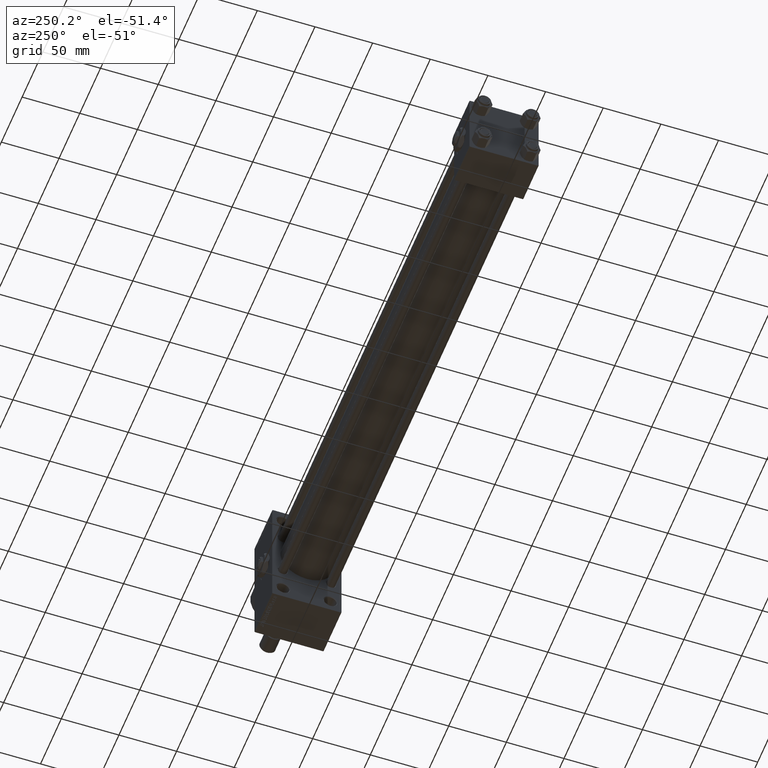
[diagram: clean part render]
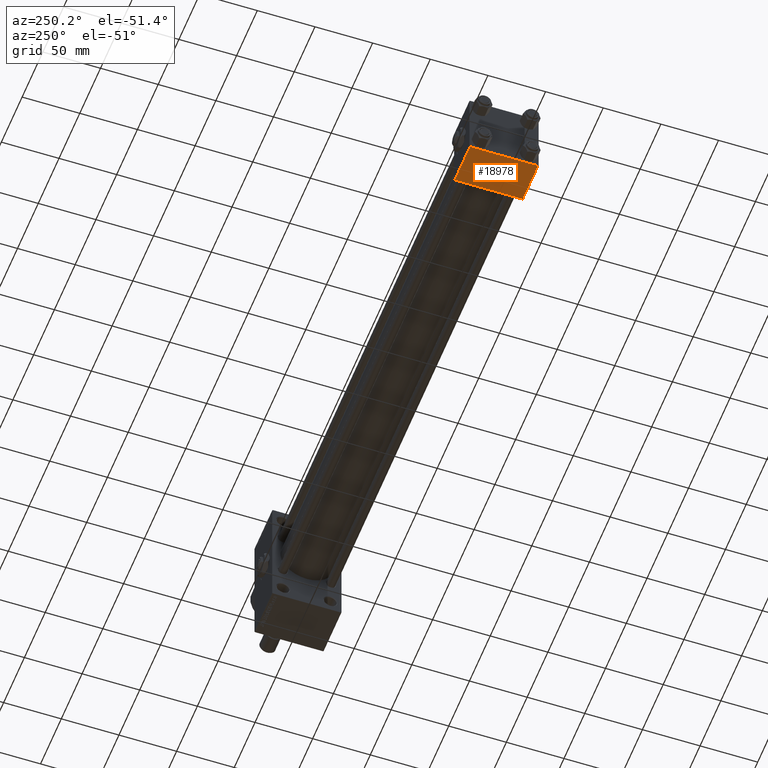
[diagram: same view with one face highlighted and labeled with its STEP entity id]
A machine part, auxiliary view. The second image highlights one B-rep face of the part: STEP entity #18978.
In plain terms, the highlighted planar face has unit normal (0, 0, -1).
Its self-contained STEP definition (entity closure, byte-faithful):
#2007 = EDGE_CURVE ( 'NONE', #23005, #24872, #23461, .T. ) ;
#2552 = CARTESIAN_POINT ( 'NONE',  ( 0.000000000000000000, -29.50000000000000000, -30.00000000000000711 ) ) ;
#7485 = DIRECTION ( 'NONE',  ( 0.000000000000000000, 1.156482317317871725E-16, -1.000000000000000000 ) ) ;
#8404 = CARTESIAN_POINT ( 'NONE',  ( 37.00000000000000000, -29.50000000000000000, -30.00000000000000711 ) ) ;
#11245 = VECTOR ( 'NONE', #19923, 1000.000000000000000 ) ;
#11583 = LINE ( 'NONE', #19146, #25447 ) ;
#11772 = CARTESIAN_POINT ( 'NONE',  ( 37.00000000000000000, 29.99999999999999289, -30.00000000000000000 ) ) ;
#13645 = CARTESIAN_POINT ( 'NONE',  ( 0.000000000000000000, 29.49999999999997868, -30.00000000000000000 ) ) ;
#14939 = ORIENTED_EDGE ( 'NONE', *, *, #33366, .F. ) ;
#15456 = LINE ( 'NONE', #27063, #19920 ) ;
#18978 = ADVANCED_FACE ( 'NONE', ( #20712 ), #32352, .T. ) ;
#19084 = DIRECTION ( 'NONE',  ( 0.000000000000000000, 1.000000000000000000, 1.156482317317871725E-16 ) ) ;
#19146 = CARTESIAN_POINT ( 'NONE',  ( 37.00000000000000000, 29.49999999999997868, -30.00000000000000000 ) ) ;
#19907 = EDGE_LOOP ( 'NONE', ( #14939, #40464, #32146, #42852 ) ) ;
#19920 = VECTOR ( 'NONE', #27570, 1000.000000000000000 ) ;
#19923 = DIRECTION ( 'NONE',  ( -1.000000000000000000, 0.000000000000000000, 0.000000000000000000 ) ) ;
#20712 = FACE_OUTER_BOUND ( 'NONE', #19907, .T. ) ;
#23005 = VERTEX_POINT ( 'NONE', #8404 ) ;
#23196 = CARTESIAN_POINT ( 'NONE',  ( 0.000000000000000000, -29.50000000000001066, -30.00000000000000711 ) ) ;
#23461 = LINE ( 'NONE', #23196, #11245 ) ;
#23812 = CARTESIAN_POINT ( 'NONE',  ( 37.00000000000000000, 29.99999999999999289, -30.00000000000000000 ) ) ;
#24872 = VERTEX_POINT ( 'NONE', #2552 ) ;
#25447 = VECTOR ( 'NONE', #43163, 1000.000000000000000 ) ;
#27063 = CARTESIAN_POINT ( 'NONE',  ( 0.000000000000000000, 29.99999999999999289, -30.00000000000000000 ) ) ;
#27570 = DIRECTION ( 'NONE',  ( 0.000000000000000000, -1.000000000000000000, -1.156482317317871725E-16 ) ) ;
#27956 = EDGE_CURVE ( 'NONE', #33018, #23005, #47073, .T. ) ;
#28634 = EDGE_CURVE ( 'NONE', #41162, #33018, #11583, .T. ) ;
#32146 = ORIENTED_EDGE ( 'NONE', *, *, #27956, .T. ) ;
#32352 = PLANE ( 'NONE',  #46987 ) ;
#33018 = VERTEX_POINT ( 'NONE', #37994 ) ;
#33366 = EDGE_CURVE ( 'NONE', #41162, #24872, #15456, .T. ) ;
#36702 = VECTOR ( 'NONE', #46823, 1000.000000000000000 ) ;
#37994 = CARTESIAN_POINT ( 'NONE',  ( 37.00000000000000000, 29.49999999999997868, -30.00000000000000000 ) ) ;
#40464 = ORIENTED_EDGE ( 'NONE', *, *, #28634, .T. ) ;
#41162 = VERTEX_POINT ( 'NONE', #13645 ) ;
#42852 = ORIENTED_EDGE ( 'NONE', *, *, #2007, .T. ) ;
#43163 = DIRECTION ( 'NONE',  ( 1.000000000000000000, 0.000000000000000000, 0.000000000000000000 ) ) ;
#46823 = DIRECTION ( 'NONE',  ( 0.000000000000000000, -1.000000000000000000, -1.156482317317871725E-16 ) ) ;
#46987 = AXIS2_PLACEMENT_3D ( 'NONE', #11772, #7485, #19084 ) ;
#47073 = LINE ( 'NONE', #23812, #36702 ) ;